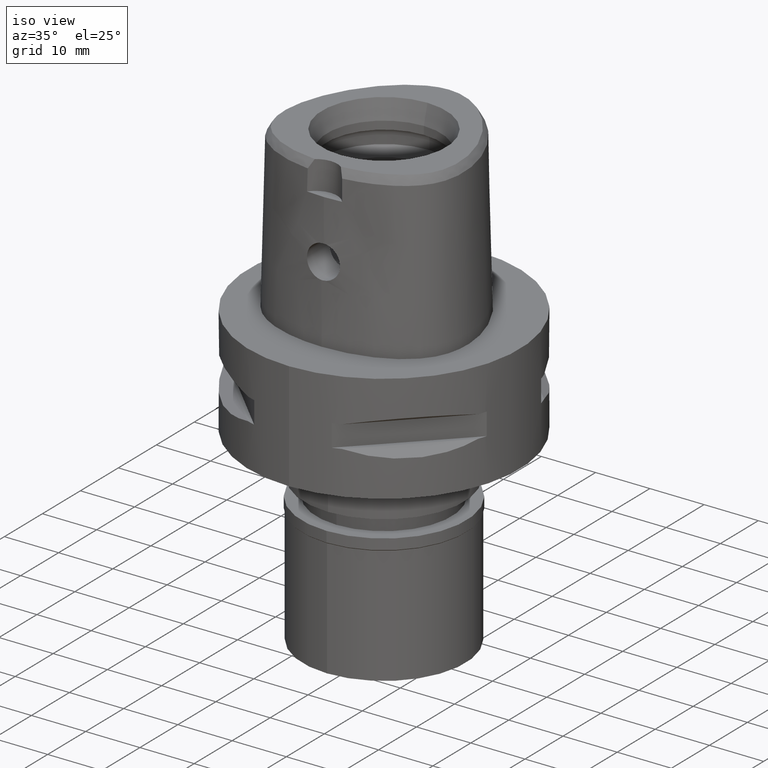
[diagram: clean part render]
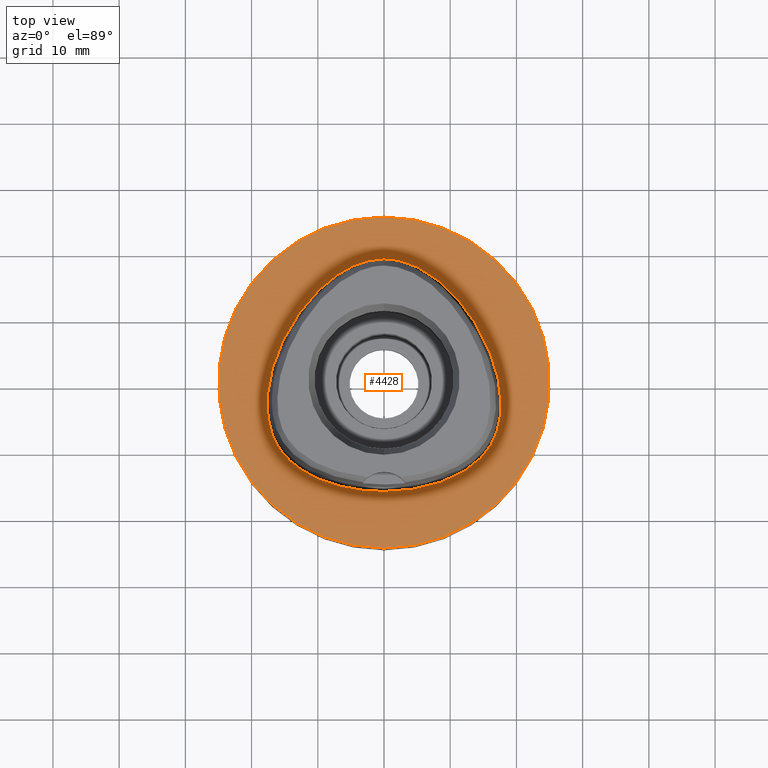
[diagram: tour spotlight — one face highlighted and labeled with its STEP entity id]
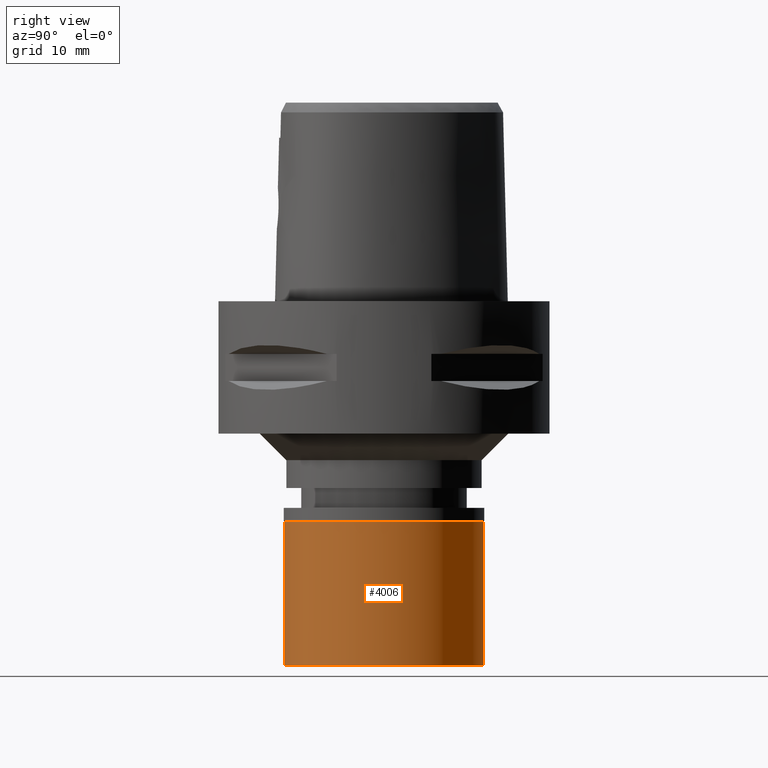
[diagram: tour spotlight — one face highlighted and labeled with its STEP entity id]
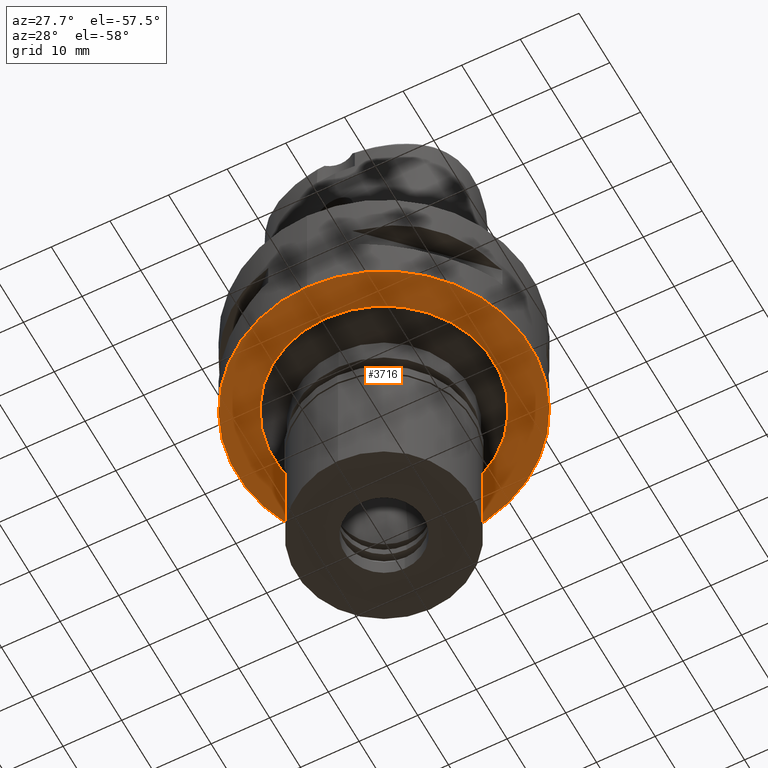
[diagram: tour spotlight — one face highlighted and labeled with its STEP entity id]
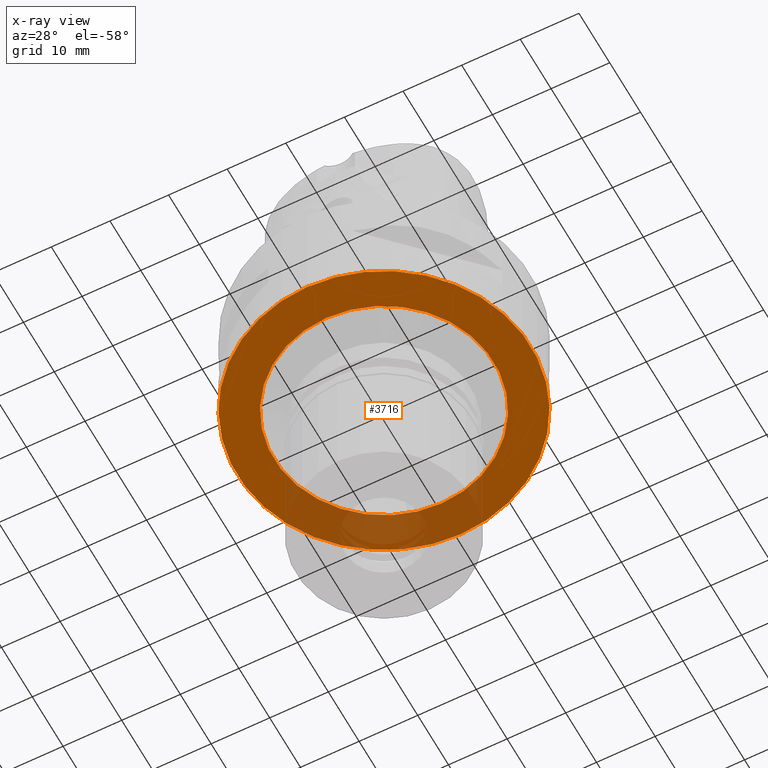
[diagram: x-ray of the same camera — body ghosted, this tour face saturated]
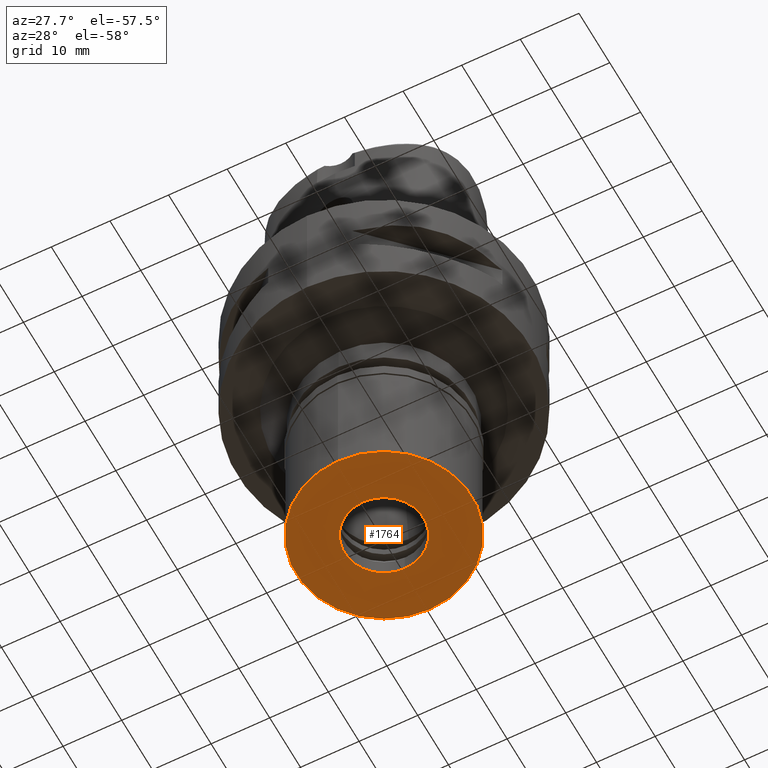
[diagram: tour spotlight — one face highlighted and labeled with its STEP entity id]
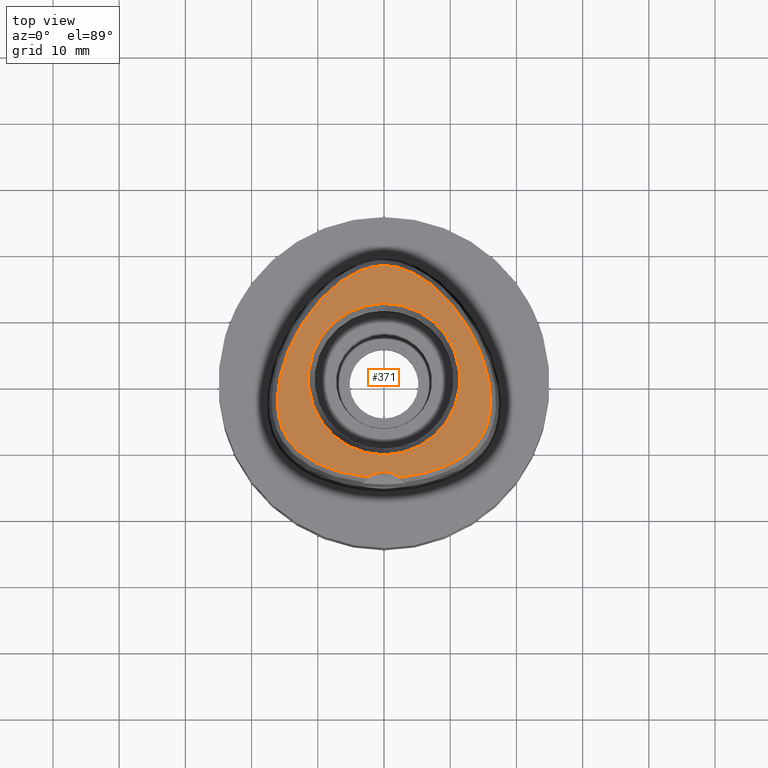
[diagram: tour spotlight — one face highlighted and labeled with its STEP entity id]
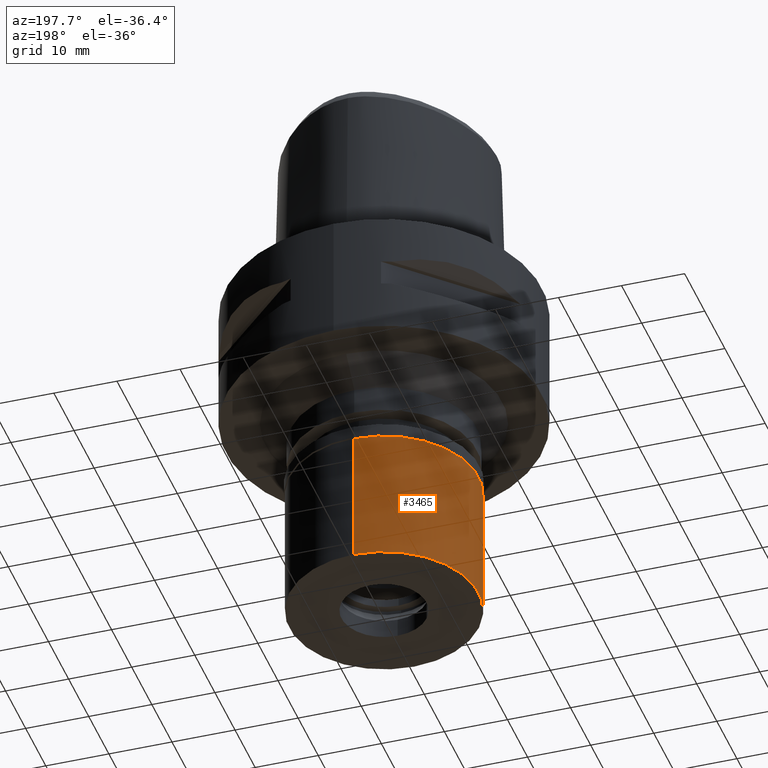
[diagram: tour spotlight — one face highlighted and labeled with its STEP entity id]
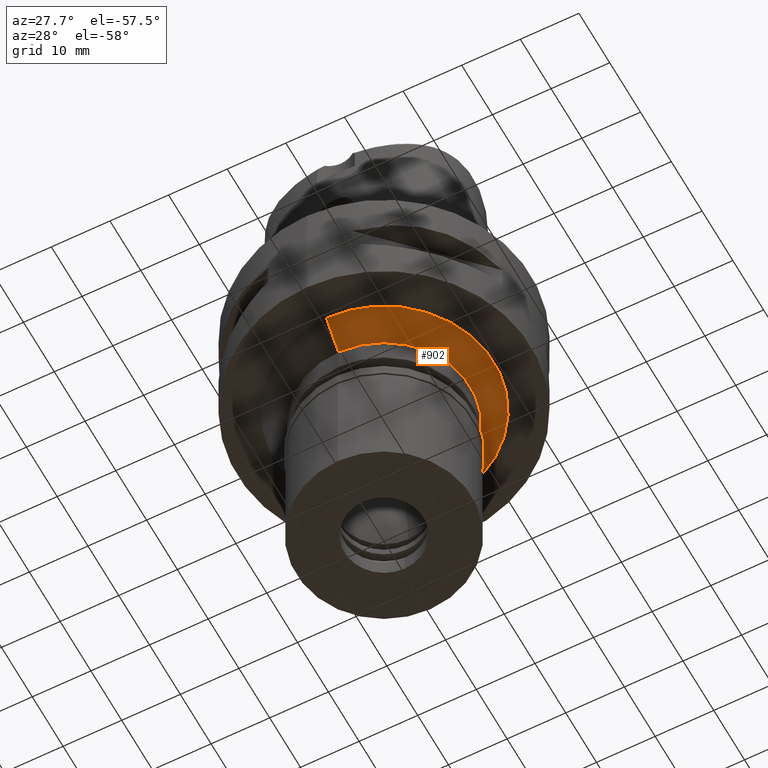
[diagram: tour spotlight — one face highlighted and labeled with its STEP entity id]
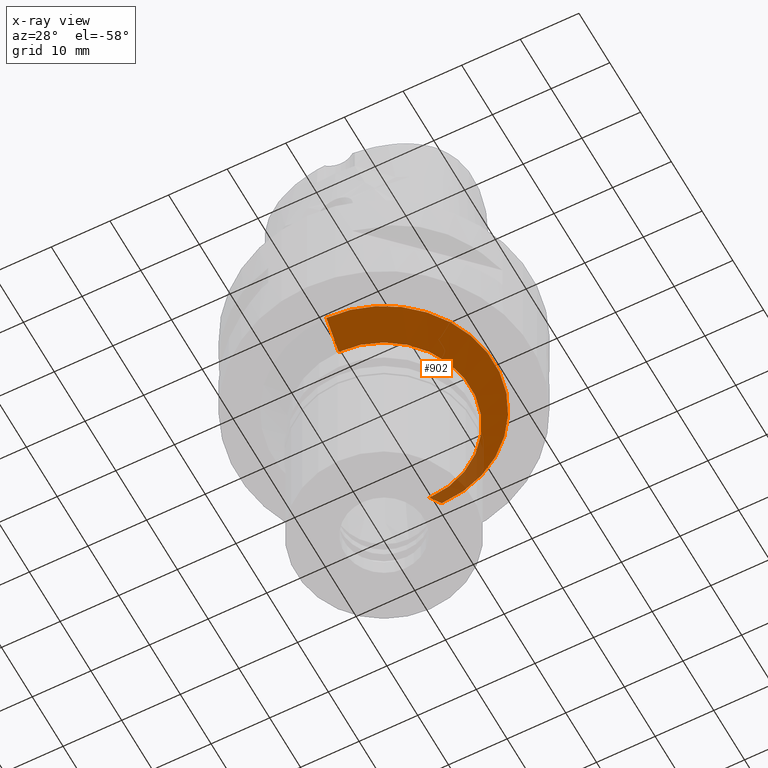
[diagram: x-ray of the same camera — body ghosted, this tour face saturated]
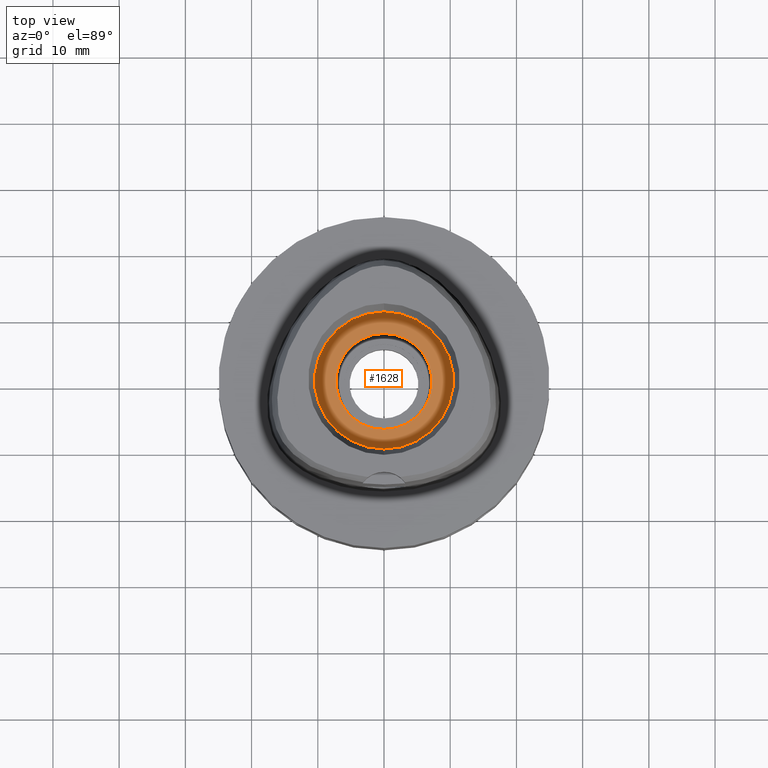
[diagram: tour spotlight — one face highlighted and labeled with its STEP entity id]
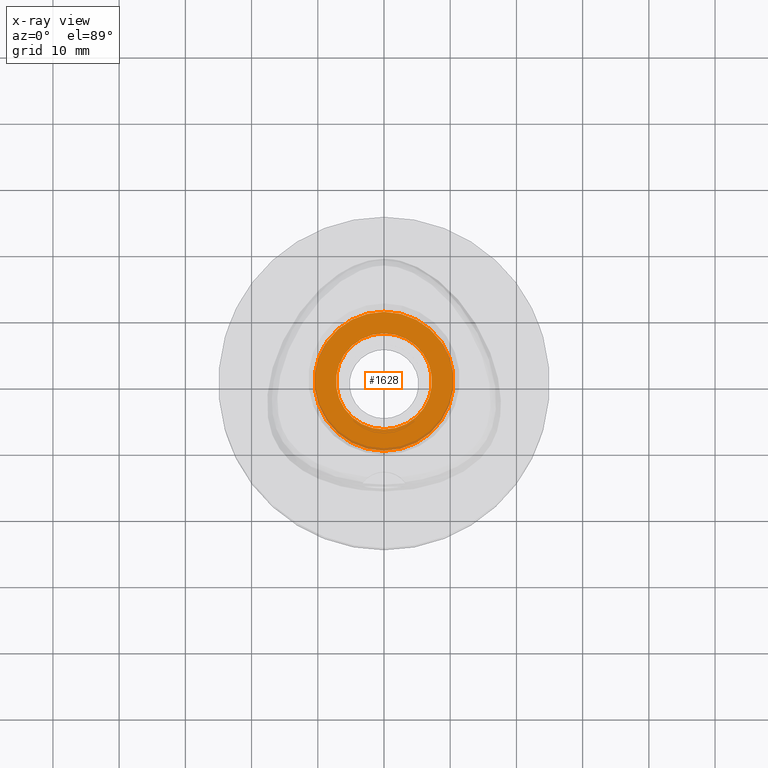
[diagram: x-ray of the same camera — body ghosted, this tour face saturated]
A machine part: a face-by-face anatomy tour. The part has 98 B-rep faces; the first image is the clean iso view, then the 8 largest visible faces are spotlighted one at a time (largest first), each with its STEP entity span.

Face 1 — top view, entity #4428. In plain terms, the highlighted planar face has unit normal (0, 0, -1).
Definition (entity closure, byte-faithful):
#113 = CARTESIAN_POINT ( 'NONE',  ( -4.728927206327147914, 17.73480468646186381, 4.552303366624037284E-08 ) ) ;
#145 = CARTESIAN_POINT ( 'NONE',  ( 0.0000000000000000000, 1.252201352127999809E-14, 0.0000000000000000000 ) ) ;
#172 = CARTESIAN_POINT ( 'NONE',  ( 1.151443814120000046E-10, 18.69499999997000117, 2.165675046701999936E-13 ) ) ;
#249 = CARTESIAN_POINT ( 'NONE',  ( -16.20602471864702920, -9.356552733804035071, 4.552303366624037284E-08 ) ) ;
#257 = EDGE_CURVE ( 'NONE', #546, #3230, #1526, .T. ) ;
#277 = CARTESIAN_POINT ( 'NONE',  ( -2.732767252417000146E-13, -16.45500000000000185, 2.177517425631000294E-13 ) ) ;
#300 = EDGE_CURVE ( 'NONE', #3230, #546, #1283, .T. ) ;
#393 = FACE_OUTER_BOUND ( 'NONE', #2321, .T. ) ;
#416 = CARTESIAN_POINT ( 'NONE',  ( 1.151443814120000046E-10, 18.69499999997000117, 2.165675046701999936E-13 ) ) ;
#532 = CARTESIAN_POINT ( 'NONE',  ( 2.040572359458030949, 18.55015625856890793, -3.479442883445003909E-07 ) ) ;
#546 = VERTEX_POINT ( 'NONE', #416 ) ;
#558 = CARTESIAN_POINT ( 'NONE',  ( 17.16495052617579020, -7.165908205608626069, -3.479442883445003909E-07 ) ) ;
#583 = CARTESIAN_POINT ( 'NONE',  ( 17.56373943798408632, -5.455996094987367151, -3.479442883445003909E-07 ) ) ;
#611 = CARTESIAN_POINT ( 'NONE',  ( 8.946741559168900793, -15.03902344572597016, -3.479442883445003909E-07 ) ) ;
#635 = CARTESIAN_POINT ( 'NONE',  ( -16.51672824672003514, 3.703437499611570427, 4.552303366624037284E-08 ) ) ;
#901 = CARTESIAN_POINT ( 'NONE',  ( 0.6801907864972926987, 18.69500000869551570, -3.479442883445003909E-07 ) ) ;
#975 = CARTESIAN_POINT ( 'NONE',  ( -2.732767252417000146E-13, -16.45500000000000185, 2.177517425631000294E-13 ) ) ;
#1126 = PLANE ( 'NONE',  #2805 ) ;
#1129 = DIRECTION ( 'NONE',  ( 0.0000000000000000000, -1.000000000000000000, 0.0000000000000000000 ) ) ;
#1154 = CARTESIAN_POINT ( 'NONE',  ( 0.0000000000000000000, 1.224646799146999965E-14, 0.0000000000000000000 ) ) ;
#1156 = DIRECTION ( 'NONE',  ( 0.0000000000000000000, 1.000000000000000000, 0.0000000000000000000 ) ) ;
#1259 = CARTESIAN_POINT ( 'NONE',  ( 17.49754713168341169, -0.2285937484726903723, -3.479442883445003909E-07 ) ) ;
#1283 = B_SPLINE_CURVE_WITH_KNOTS ( 'NONE', 3,
 ( #277, #3945, #2053, #611, #2731, #2079, #2843, #1748, #2409, #1286, #558, #583, #3232, #1259, #4327, #4236, #3178, #1304, #2027, #532, #901, #172 ),
 .UNSPECIFIED., .F., .F.,
 ( 4, 1, 1, 1, 1, 1, 1, 1, 1, 1, 1, 1, 1, 1, 1, 1, 1, 1, 1, 4 ),
 ( 0.0000000000000000000, 0.08333333333324000058, 0.1666666666665000129, 0.2083333333331000015, 0.2499999999996999900, 0.2916666666664000096, 0.3124999999996999622, 0.3333333333328999948, 0.3541666666663000340, 0.3749999999995999866, 0.4166666666663000340, 0.4583333333328000192, 0.4999999999994999555, 0.5833333333326999881, 0.6666666666660000518, 0.7499999999991999733, 0.8333333333324000058, 0.9166666666657000695, 0.9583333333322999747, 1.000000000000000000 ),
 .UNSPECIFIED. ) ;
#1286 = CARTESIAN_POINT ( 'NONE',  ( 16.66912842936392991, -8.445800784790817417, -3.479442883445003909E-07 ) ) ;
#1304 = CARTESIAN_POINT ( 'NONE',  ( 7.967839669642795108, 15.83070313190109246, -3.479442883445003909E-07 ) ) ;
#1332 = CARTESIAN_POINT ( 'NONE',  ( -17.71143735446788980, -3.269218750007805596, 4.552303366624037284E-08 ) ) ;
#1526 = B_SPLINE_CURVE_WITH_KNOTS ( 'NONE', 3,
 ( #4173, #1942, #3427, #113, #1586, #1961, #1643, #635, #3546, #1332, #4303, #4639, #3206, #249, #3518, #2812, #1691, #4689, #1719, #3912, #4277, #975 ),
 .UNSPECIFIED., .F., .F.,
 ( 4, 1, 1, 1, 1, 1, 1, 1, 1, 1, 1, 1, 1, 1, 1, 1, 1, 1, 1, 4 ),
 ( 0.0000000000000000000, 0.04166666666892999971, 0.08333333333549000632, 0.1666666666687000031, 0.2500000000018000046, 0.3333333333349000061, 0.4166666666681000386, 0.5000000000012000401, 0.5416666666678000563, 0.5833333333343000415, 0.6250000000008999468, 0.6458333333342000104, 0.6666666666675000741, 0.6875000000008000267, 0.7083333333340000593, 0.7500000000005999645, 0.7916666666673000119, 0.8333333333337999971, 0.9166666666670000296, 1.000000000000000000 ),
 .UNSPECIFIED. ) ;
#1586 = CARTESIAN_POINT ( 'NONE',  ( -7.967839663516353532, 15.83070312409091329, 4.552303366624037284E-08 ) ) ;
#1601 = CARTESIAN_POINT ( 'NONE',  ( 0.0000000000000000000, 1.252201352127999809E-14, 0.0000000000000000000 ) ) ;
#1643 = CARTESIAN_POINT ( 'NONE',  ( -14.38008119590371869, 8.302343749427668840, 4.552303366624037284E-08 ) ) ;
#1691 = CARTESIAN_POINT ( 'NONE',  ( -13.50690093409537695, -12.48264648348115102, 4.552303366624037284E-08 ) ) ;
#1719 = CARTESIAN_POINT ( 'NONE',  ( -8.946741555794719858, -15.03902343643010830, 4.552303366624037284E-08 ) ) ;
#1748 = CARTESIAN_POINT ( 'NONE',  ( 15.64884224960954384, -10.21298828637607237, -3.479442883445003909E-07 ) ) ;
#1942 = CARTESIAN_POINT ( 'NONE',  ( -0.6801907857698357152, 18.69499999886590302, 4.552303366624037284E-08 ) ) ;
#1961 = CARTESIAN_POINT ( 'NONE',  ( -11.46563507935899651, 12.45218749925876089, 4.552303366624037284E-08 ) ) ;
#2027 = CARTESIAN_POINT ( 'NONE',  ( 4.728927210554268790, 17.73480469544902149, -3.479442883445003909E-07 ) ) ;
#2053 = CARTESIAN_POINT ( 'NONE',  ( 5.051093169114821535, -16.15562500860708539, -3.479442883445003909E-07 ) ) ;
#2079 = CARTESIAN_POINT ( 'NONE',  ( 13.50690094019456744, -12.48264649124733161, -3.479442883445003909E-07 ) ) ;
#2087 = ORIENTED_EDGE ( 'NONE', *, *, #300, .F. ) ;
#2321 = EDGE_LOOP ( 'NONE', ( #2496, #3713 ) ) ;
#2342 = CARTESIAN_POINT ( 'NONE',  ( 0.0000000000000000000, 25.00000000000000000, 0.0000000000000000000 ) ) ;
#2409 = CARTESIAN_POINT ( 'NONE',  ( 16.20602472718874054, -9.356552738732355934, -3.479442883445003909E-07 ) ) ;
#2435 = CIRCLE ( 'NONE', #2678, 25.00000000000000000 ) ;
#2496 = ORIENTED_EDGE ( 'NONE', *, *, #3361, .F. ) ;
#2516 = DIRECTION ( 'NONE',  ( 0.0000000000000000000, -1.000000000000000000, 0.0000000000000000000 ) ) ;
#2587 = DIRECTION ( 'NONE',  ( 0.0000000000000000000, 0.0000000000000000000, -1.000000000000000000 ) ) ;
#2596 = AXIS2_PLACEMENT_3D ( 'NONE', #145, #4448, #1129 ) ;
#2678 = AXIS2_PLACEMENT_3D ( 'NONE', #1601, #4096, #1156 ) ;
#2731 = CARTESIAN_POINT ( 'NONE',  ( 11.68694517015587309, -13.70394532007966504, -3.479442883445003909E-07 ) ) ;
#2805 = AXIS2_PLACEMENT_3D ( 'NONE', #1154, #2587, #2516 ) ;
#2812 = CARTESIAN_POINT ( 'NONE',  ( -14.78833380316578605, -11.28232910077399431, 4.552303366624037284E-08 ) ) ;
#2843 = CARTESIAN_POINT ( 'NONE',  ( 14.78833381033293648, -11.28232910757304630, -3.479442883445003909E-07 ) ) ;
#2879 = EDGE_LOOP ( 'NONE', ( #3095, #2087 ) ) ;
#3071 = CARTESIAN_POINT ( 'NONE',  ( 0.0000000000000000000, -25.00000000000000000, 0.0000000000000000000 ) ) ;
#3095 = ORIENTED_EDGE ( 'NONE', *, *, #257, .F. ) ;
#3178 = CARTESIAN_POINT ( 'NONE',  ( 11.46563508691895805, 12.45218750564272447, -3.479442883445003909E-07 ) ) ;
#3206 = CARTESIAN_POINT ( 'NONE',  ( -16.66912842034997411, -8.445800780786887785, 4.552303366624037284E-08 ) ) ;
#3230 = VERTEX_POINT ( 'NONE', #4424 ) ;
#3232 = CARTESIAN_POINT ( 'NONE',  ( 17.71143736434618887, -3.269218749943413993, -3.479442883445003909E-07 ) ) ;
#3361 = EDGE_CURVE ( 'NONE', #3406, #3828, #2435, .T. ) ;
#3406 = VERTEX_POINT ( 'NONE', #2342 ) ;
#3427 = CARTESIAN_POINT ( 'NONE',  ( -2.040572357432135053, 18.55015624887900572, 4.552303366624037284E-08 ) ) ;
#3506 = EDGE_CURVE ( 'NONE', #3828, #3406, #3931, .T. ) ;
#3518 = CARTESIAN_POINT ( 'NONE',  ( -15.64884224163582616, -10.21298828058140629, 4.552303366624037284E-08 ) ) ;
#3546 = CARTESIAN_POINT ( 'NONE',  ( -17.49754712195156969, -0.2285937501998314691, 4.552303366624037284E-08 ) ) ;
#3713 = ORIENTED_EDGE ( 'NONE', *, *, #3506, .F. ) ;
#3828 = VERTEX_POINT ( 'NONE', #3071 ) ;
#3912 = CARTESIAN_POINT ( 'NONE',  ( -5.051093167371203840, -16.15562499886673820, 4.552303366624037284E-08 ) ) ;
#3931 = CIRCLE ( 'NONE', #2596, 25.00000000000000000 ) ;
#3945 = CARTESIAN_POINT ( 'NONE',  ( 1.683697723039888849, -16.45500000869401092, -3.479442883445003909E-07 ) ) ;
#4096 = DIRECTION ( 'NONE',  ( 0.0000000000000000000, 0.0000000000000000000, -1.000000000000000000 ) ) ;
#4173 = CARTESIAN_POINT ( 'NONE',  ( 1.151443814120000046E-10, 18.69499999997000117, 2.165675046701999936E-13 ) ) ;
#4236 = CARTESIAN_POINT ( 'NONE',  ( 14.38008120447227967, 8.302343754369969631, -3.479442883445003909E-07 ) ) ;
#4277 = CARTESIAN_POINT ( 'NONE',  ( -1.683697722461389601, -16.45499999886587972, 4.552303366624037284E-08 ) ) ;
#4303 = CARTESIAN_POINT ( 'NONE',  ( -17.56373942820204093, -5.455996093588253437, 4.552303366624037284E-08 ) ) ;
#4327 = CARTESIAN_POINT ( 'NONE',  ( 16.51672825603316852, 3.703437502969323170, -3.479442883445003909E-07 ) ) ;
#4424 = CARTESIAN_POINT ( 'NONE',  ( -2.732767252417000146E-13, -16.45500000000000185, 2.177517425631000294E-13 ) ) ;
#4428 = ADVANCED_FACE ( 'NONE', ( #393, #4443 ), #1126, .F. ) ;
#4443 = FACE_BOUND ( 'NONE', #2879, .T. ) ;
#4448 = DIRECTION ( 'NONE',  ( 0.0000000000000000000, 0.0000000000000000000, -1.000000000000000000 ) ) ;
#4639 = CARTESIAN_POINT ( 'NONE',  ( -17.16495051670693783, -7.165908202799537108, 4.552303366624037284E-08 ) ) ;
#4689 = CARTESIAN_POINT ( 'NONE',  ( -11.68694516526699623, -13.70394531151501027, 4.552303366624037284E-08 ) ) ;

Face 2 — right view, entity #4006. In plain terms, the highlighted cylindrical surface (partial cylindrical patch) has radius 15 mm, axis along (0, 0, -1).
Definition (entity closure, byte-faithful):
#150 = CARTESIAN_POINT ( 'NONE',  ( 0.0000000000000000000, 15.00000000000000000, -23.80000000000000071 ) ) ;
#407 = AXIS2_PLACEMENT_3D ( 'NONE', #2789, #2740, #542 ) ;
#467 = LINE ( 'NONE', #4195, #811 ) ;
#486 = CARTESIAN_POINT ( 'NONE',  ( 0.0000000000000000000, 0.0000000000000000000, -23.80000000000000071 ) ) ;
#542 = DIRECTION ( 'NONE',  ( 0.0000000000000000000, 1.000000000000000000, 0.0000000000000000000 ) ) ;
#759 = EDGE_LOOP ( 'NONE', ( #1765, #1475, #840, #3351 ) ) ;
#811 = VECTOR ( 'NONE', #1717, 1000.000000000000000 ) ;
#840 = ORIENTED_EDGE ( 'NONE', *, *, #3434, .T. ) ;
#843 = EDGE_CURVE ( 'NONE', #4038, #1442, #3682, .T. ) ;
#931 = DIRECTION ( 'NONE',  ( 0.0000000000000000000, -1.000000000000000000, 0.0000000000000000000 ) ) ;
#1268 = VECTOR ( 'NONE', #1489, 1000.000000000000000 ) ;
#1334 = CARTESIAN_POINT ( 'NONE',  ( 0.0000000000000000000, 15.00000000000000000, -2.100000000000000089 ) ) ;
#1413 = EDGE_CURVE ( 'NONE', #4275, #2190, #467, .T. ) ;
#1442 = VERTEX_POINT ( 'NONE', #1669 ) ;
#1475 = ORIENTED_EDGE ( 'NONE', *, *, #843, .T. ) ;
#1489 = DIRECTION ( 'NONE',  ( 0.0000000000000000000, 0.0000000000000000000, -1.000000000000000000 ) ) ;
#1515 = DIRECTION ( 'NONE',  ( 0.0000000000000000000, -1.000000000000000000, 0.0000000000000000000 ) ) ;
#1669 = CARTESIAN_POINT ( 'NONE',  ( 0.0000000000000000000, -15.00000000000000000, -23.80000000000000071 ) ) ;
#1717 = DIRECTION ( 'NONE',  ( 0.0000000000000000000, 0.0000000000000000000, -1.000000000000000000 ) ) ;
#1765 = ORIENTED_EDGE ( 'NONE', *, *, #3969, .T. ) ;
#1817 = CARTESIAN_POINT ( 'NONE',  ( 0.0000000000000000000, -15.00000000000000000, -2.100000000000000089 ) ) ;
#1903 = CIRCLE ( 'NONE', #2928, 15.00000000000000000 ) ;
#1959 = DIRECTION ( 'NONE',  ( 0.0000000000000000000, 0.0000000000000000000, 1.000000000000000000 ) ) ;
#2190 = VERTEX_POINT ( 'NONE', #150 ) ;
#2376 = CARTESIAN_POINT ( 'NONE',  ( 0.0000000000000000000, 0.0000000000000000000, 0.0000000000000000000 ) ) ;
#2740 = DIRECTION ( 'NONE',  ( 0.0000000000000000000, 0.0000000000000000000, -1.000000000000000000 ) ) ;
#2789 = CARTESIAN_POINT ( 'NONE',  ( 0.0000000000000000000, 0.0000000000000000000, -2.100000000000000089 ) ) ;
#2928 = AXIS2_PLACEMENT_3D ( 'NONE', #486, #1959, #1515 ) ;
#2950 = CARTESIAN_POINT ( 'NONE',  ( 0.0000000000000000000, -15.00000000000000000, -2.100000000000000089 ) ) ;
#3041 = CIRCLE ( 'NONE', #407, 15.00000000000000000 ) ;
#3215 = DIRECTION ( 'NONE',  ( 0.0000000000000000000, 0.0000000000000000000, -1.000000000000000000 ) ) ;
#3351 = ORIENTED_EDGE ( 'NONE', *, *, #1413, .F. ) ;
#3434 = EDGE_CURVE ( 'NONE', #1442, #2190, #1903, .T. ) ;
#3556 = FACE_OUTER_BOUND ( 'NONE', #759, .T. ) ;
#3682 = LINE ( 'NONE', #2950, #1268 ) ;
#3873 = CYLINDRICAL_SURFACE ( 'NONE', #4133, 15.00000000000000000 ) ;
#3969 = EDGE_CURVE ( 'NONE', #4275, #4038, #3041, .T. ) ;
#4006 = ADVANCED_FACE ( 'NONE', ( #3556 ), #3873, .T. ) ;
#4038 = VERTEX_POINT ( 'NONE', #1817 ) ;
#4133 = AXIS2_PLACEMENT_3D ( 'NONE', #2376, #3215, #931 ) ;
#4195 = CARTESIAN_POINT ( 'NONE',  ( 0.0000000000000000000, 15.00000000000000000, -2.100000000000000089 ) ) ;
#4275 = VERTEX_POINT ( 'NONE', #1334 ) ;

Face 3 — auxiliary view, entity #3716. An x-ray twin of the same camera follows (body ghosted, this face saturated) — the face is partly hidden behind the body. In plain terms, the highlighted planar face has unit normal (0, 0, -1).
Definition (entity closure, byte-faithful):
#225 = VERTEX_POINT ( 'NONE', #2671 ) ;
#368 = DIRECTION ( 'NONE',  ( 0.0000000000000000000, 0.0000000000000000000, -1.000000000000000000 ) ) ;
#379 = EDGE_LOOP ( 'NONE', ( #2994, #4387 ) ) ;
#398 = EDGE_LOOP ( 'NONE', ( #3876, #2863 ) ) ;
#412 = CARTESIAN_POINT ( 'NONE',  ( 0.0000000000000000000, 0.0000000000000000000, -20.00000000000000000 ) ) ;
#413 = CIRCLE ( 'NONE', #4505, 25.00000000000000000 ) ;
#668 = AXIS2_PLACEMENT_3D ( 'NONE', #3122, #4604, #1277 ) ;
#829 = CARTESIAN_POINT ( 'NONE',  ( 0.0000000000000000000, 1.252201352127999809E-14, -20.00000000000000000 ) ) ;
#1153 = CARTESIAN_POINT ( 'NONE',  ( 0.0000000000000000000, -18.75000000000000000, -20.00000000000000000 ) ) ;
#1219 = DIRECTION ( 'NONE',  ( 0.0000000000000000000, 0.0000000000000000000, 1.000000000000000000 ) ) ;
#1277 = DIRECTION ( 'NONE',  ( 0.0000000000000000000, -1.000000000000000000, 0.0000000000000000000 ) ) ;
#1312 = EDGE_CURVE ( 'NONE', #225, #2145, #4779, .T. ) ;
#1419 = VERTEX_POINT ( 'NONE', #1940 ) ;
#1656 = VERTEX_POINT ( 'NONE', #1153 ) ;
#1940 = CARTESIAN_POINT ( 'NONE',  ( 0.0000000000000000000, 18.75000000000000000, -20.00000000000000000 ) ) ;
#2145 = VERTEX_POINT ( 'NONE', #4193 ) ;
#2218 = CIRCLE ( 'NONE', #3312, 18.75000000000000000 ) ;
#2226 = FACE_OUTER_BOUND ( 'NONE', #379, .T. ) ;
#2245 = FACE_BOUND ( 'NONE', #398, .T. ) ;
#2540 = EDGE_CURVE ( 'NONE', #1656, #1419, #2837, .T. ) ;
#2554 = PLANE ( 'NONE',  #4672 ) ;
#2580 = DIRECTION ( 'NONE',  ( 0.0000000000000000000, -1.000000000000000000, 0.0000000000000000000 ) ) ;
#2671 = CARTESIAN_POINT ( 'NONE',  ( 0.0000000000000000000, -25.00000000000000000, -20.00000000000000000 ) ) ;
#2837 = CIRCLE ( 'NONE', #3701, 18.75000000000000000 ) ;
#2855 = DIRECTION ( 'NONE',  ( 0.0000000000000000000, -1.000000000000000000, 0.0000000000000000000 ) ) ;
#2863 = ORIENTED_EDGE ( 'NONE', *, *, #2540, .F. ) ;
#2994 = ORIENTED_EDGE ( 'NONE', *, *, #4571, .F. ) ;
#3122 = CARTESIAN_POINT ( 'NONE',  ( 0.0000000000000000000, 1.252201352127999809E-14, -20.00000000000000000 ) ) ;
#3312 = AXIS2_PLACEMENT_3D ( 'NONE', #4116, #3330, #3355 ) ;
#3330 = DIRECTION ( 'NONE',  ( 0.0000000000000000000, 0.0000000000000000000, -1.000000000000000000 ) ) ;
#3355 = DIRECTION ( 'NONE',  ( 0.0000000000000000000, 1.000000000000000000, 0.0000000000000000000 ) ) ;
#3416 = EDGE_CURVE ( 'NONE', #1419, #1656, #2218, .T. ) ;
#3508 = CARTESIAN_POINT ( 'NONE',  ( 0.0000000000000000000, 0.0000000000000000000, -20.00000000000000000 ) ) ;
#3585 = DIRECTION ( 'NONE',  ( 0.0000000000000000000, 0.0000000000000000000, -1.000000000000000000 ) ) ;
#3701 = AXIS2_PLACEMENT_3D ( 'NONE', #3508, #3585, #2855 ) ;
#3716 = ADVANCED_FACE ( 'NONE', ( #2226, #2245 ), #2554, .T. ) ;
#3876 = ORIENTED_EDGE ( 'NONE', *, *, #3416, .F. ) ;
#4116 = CARTESIAN_POINT ( 'NONE',  ( 0.0000000000000000000, 0.0000000000000000000, -20.00000000000000000 ) ) ;
#4193 = CARTESIAN_POINT ( 'NONE',  ( 0.0000000000000000000, 25.00000000000000000, -20.00000000000000000 ) ) ;
#4387 = ORIENTED_EDGE ( 'NONE', *, *, #1312, .F. ) ;
#4505 = AXIS2_PLACEMENT_3D ( 'NONE', #829, #1219, #4538 ) ;
#4538 = DIRECTION ( 'NONE',  ( 0.0000000000000000000, 1.000000000000000000, 0.0000000000000000000 ) ) ;
#4571 = EDGE_CURVE ( 'NONE', #2145, #225, #413, .T. ) ;
#4604 = DIRECTION ( 'NONE',  ( 0.0000000000000000000, 0.0000000000000000000, 1.000000000000000000 ) ) ;
#4672 = AXIS2_PLACEMENT_3D ( 'NONE', #412, #368, #2580 ) ;
#4779 = CIRCLE ( 'NONE', #668, 25.00000000000000000 ) ;

Face 4 — auxiliary view, entity #1764. In plain terms, the highlighted planar face has unit normal (0, 0, -1).
Definition (entity closure, byte-faithful):
#150 = CARTESIAN_POINT ( 'NONE',  ( 0.0000000000000000000, 15.00000000000000000, -23.80000000000000071 ) ) ;
#297 = CIRCLE ( 'NONE', #1670, 6.750000000000000000 ) ;
#486 = CARTESIAN_POINT ( 'NONE',  ( 0.0000000000000000000, 0.0000000000000000000, -23.80000000000000071 ) ) ;
#506 = CIRCLE ( 'NONE', #2044, 15.00000000000000000 ) ;
#529 = DIRECTION ( 'NONE',  ( 0.0000000000000000000, 1.000000000000000000, 0.0000000000000000000 ) ) ;
#582 = AXIS2_PLACEMENT_3D ( 'NONE', #2606, #4106, #770 ) ;
#637 = EDGE_CURVE ( 'NONE', #1112, #1707, #3687, .T. ) ;
#722 = EDGE_LOOP ( 'NONE', ( #1401, #1801 ) ) ;
#770 = DIRECTION ( 'NONE',  ( 0.0000000000000000000, -1.000000000000000000, 0.0000000000000000000 ) ) ;
#906 = DIRECTION ( 'NONE',  ( 0.0000000000000000000, 0.0000000000000000000, -1.000000000000000000 ) ) ;
#952 = CARTESIAN_POINT ( 'NONE',  ( 0.0000000000000000000, 0.0000000000000000000, -23.80000000000000071 ) ) ;
#973 = ORIENTED_EDGE ( 'NONE', *, *, #637, .F. ) ;
#981 = DIRECTION ( 'NONE',  ( 0.0000000000000000000, -1.000000000000000000, 0.0000000000000000000 ) ) ;
#1112 = VERTEX_POINT ( 'NONE', #1242 ) ;
#1113 = ORIENTED_EDGE ( 'NONE', *, *, #3400, .F. ) ;
#1145 = PLANE ( 'NONE',  #582 ) ;
#1237 = CARTESIAN_POINT ( 'NONE',  ( 0.0000000000000000000, 0.0000000000000000000, -23.80000000000000071 ) ) ;
#1242 = CARTESIAN_POINT ( 'NONE',  ( 0.0000000000000000000, -6.750000000000000000, -23.80000000000000071 ) ) ;
#1257 = DIRECTION ( 'NONE',  ( 0.0000000000000000000, 0.0000000000000000000, -1.000000000000000000 ) ) ;
#1352 = AXIS2_PLACEMENT_3D ( 'NONE', #2414, #906, #981 ) ;
#1401 = ORIENTED_EDGE ( 'NONE', *, *, #2230, .F. ) ;
#1442 = VERTEX_POINT ( 'NONE', #1669 ) ;
#1507 = FACE_OUTER_BOUND ( 'NONE', #722, .T. ) ;
#1515 = DIRECTION ( 'NONE',  ( 0.0000000000000000000, -1.000000000000000000, 0.0000000000000000000 ) ) ;
#1669 = CARTESIAN_POINT ( 'NONE',  ( 0.0000000000000000000, -15.00000000000000000, -23.80000000000000071 ) ) ;
#1670 = AXIS2_PLACEMENT_3D ( 'NONE', #1237, #1257, #529 ) ;
#1707 = VERTEX_POINT ( 'NONE', #1840 ) ;
#1764 = ADVANCED_FACE ( 'NONE', ( #1507, #4464 ), #1145, .T. ) ;
#1801 = ORIENTED_EDGE ( 'NONE', *, *, #3434, .F. ) ;
#1840 = CARTESIAN_POINT ( 'NONE',  ( 0.0000000000000000000, 6.750000000000000000, -23.80000000000000071 ) ) ;
#1903 = CIRCLE ( 'NONE', #2928, 15.00000000000000000 ) ;
#1959 = DIRECTION ( 'NONE',  ( 0.0000000000000000000, 0.0000000000000000000, 1.000000000000000000 ) ) ;
#2030 = DIRECTION ( 'NONE',  ( 0.0000000000000000000, 1.000000000000000000, 0.0000000000000000000 ) ) ;
#2044 = AXIS2_PLACEMENT_3D ( 'NONE', #952, #3570, #2030 ) ;
#2190 = VERTEX_POINT ( 'NONE', #150 ) ;
#2230 = EDGE_CURVE ( 'NONE', #2190, #1442, #506, .T. ) ;
#2414 = CARTESIAN_POINT ( 'NONE',  ( 0.0000000000000000000, 0.0000000000000000000, -23.80000000000000071 ) ) ;
#2606 = CARTESIAN_POINT ( 'NONE',  ( 0.0000000000000000000, 0.0000000000000000000, -23.80000000000000071 ) ) ;
#2928 = AXIS2_PLACEMENT_3D ( 'NONE', #486, #1959, #1515 ) ;
#3005 = EDGE_LOOP ( 'NONE', ( #1113, #973 ) ) ;
#3400 = EDGE_CURVE ( 'NONE', #1707, #1112, #297, .T. ) ;
#3434 = EDGE_CURVE ( 'NONE', #1442, #2190, #1903, .T. ) ;
#3570 = DIRECTION ( 'NONE',  ( 0.0000000000000000000, 0.0000000000000000000, 1.000000000000000000 ) ) ;
#3687 = CIRCLE ( 'NONE', #1352, 6.750000000000000000 ) ;
#4106 = DIRECTION ( 'NONE',  ( 0.0000000000000000000, 0.0000000000000000000, -1.000000000000000000 ) ) ;
#4464 = FACE_BOUND ( 'NONE', #3005, .T. ) ;

Face 5 — top view, entity #371. In plain terms, the highlighted planar face has unit normal (0, 0, 1).
Definition (entity closure, byte-faithful):
#7 = CARTESIAN_POINT ( 'NONE',  ( 14.44767169632972958, -9.224476417586023658, 30.00000000000349232 ) ) ;
#26 = CARTESIAN_POINT ( 'NONE',  ( -5.257871200568124515, 15.58649213537407618, 29.99999999999975842 ) ) ;
#32 = CARTESIAN_POINT ( 'NONE',  ( 16.04058509949816980, -1.654113685488451280, 29.99999999999945999 ) ) ;
#42 = EDGE_LOOP ( 'NONE', ( #140, #3363, #1216 ) ) ;
#49 = CARTESIAN_POINT ( 'NONE',  ( -14.76322153899977430, -8.744676018998990941, 29.99999999999892708 ) ) ;
#74 = CARTESIAN_POINT ( 'NONE',  ( -11.11900396222790377, 10.19116357425088104, 30.00000000000079226 ) ) ;
#104 = CIRCLE ( 'NONE', #2642, 4.000000000000000888 ) ;
#121 = CARTESIAN_POINT ( 'NONE',  ( -0.5679008307149057133, 17.14013367087081363, 29.99999999999717204 ) ) ;
#140 = ORIENTED_EDGE ( 'NONE', *, *, #4375, .F. ) ;
#279 = CARTESIAN_POINT ( 'NONE',  ( 3.772905803808125125, 16.33508552418916793, 30.00000000000310152 ) ) ;
#304 = CARTESIAN_POINT ( 'NONE',  ( 0.0000000000000000000, -11.43782217350000074, 30.00000000000000000 ) ) ;
#309 = CARTESIAN_POINT ( 'NONE',  ( 1.774127352510969979, 16.97169788999384110, 29.99999999999935696 ) ) ;
#352 = CARTESIAN_POINT ( 'NONE',  ( 15.87349190487937278, -5.869792298898485861, 29.99999999999554845 ) ) ;
#371 = ADVANCED_FACE ( 'NONE', ( #756, #1098 ), #4350, .T. ) ;
#372 = CARTESIAN_POINT ( 'NONE',  ( 15.99982784346025433, -5.151471542954515037, 29.99999999999611333 ) ) ;
#418 = CARTESIAN_POINT ( 'NONE',  ( 2.406543924163999648, -14.80491841401999942, 30.00000000000000000 ) ) ;
#437 = CARTESIAN_POINT ( 'NONE',  ( -6.047371482395117681, 15.09400374235769604, 30.00000000000084199 ) ) ;
#451 = DIRECTION ( 'NONE',  ( 0.0000000000000000000, -1.000000000000000000, 0.0000000000000000000 ) ) ;
#478 = CARTESIAN_POINT ( 'NONE',  ( -14.08052509618844894, -9.706873108418424323, 29.99999999999043965 ) ) ;
#559 = CARTESIAN_POINT ( 'NONE',  ( -6.301949009456000041E-11, 17.15328888647999861, 30.00000000000000000 ) ) ;
#613 = CARTESIAN_POINT ( 'NONE',  ( 11.92667412982236996, 9.061218325783505279, 29.99999999999601741 ) ) ;
#729 = CARTESIAN_POINT ( 'NONE',  ( -5.437876102061282246, -14.35707869331161923, 29.99999999999947420 ) ) ;
#737 = CARTESIAN_POINT ( 'NONE',  ( -2.406542353497000075, -14.80491723099000012, 30.00000000000000000 ) ) ;
#756 = FACE_OUTER_BOUND ( 'NONE', #42, .T. ) ;
#776 = CARTESIAN_POINT ( 'NONE',  ( 15.90185233182487679, -0.6139199331562382733, 29.99999999999867839 ) ) ;
#820 = CARTESIAN_POINT ( 'NONE',  ( -14.55898035934081314, 4.112421202110871477, 30.00000000000046896 ) ) ;
#833 = B_SPLINE_CURVE_WITH_KNOTS ( 'NONE', 3,
 ( #3228, #4714, #4344, #4417, #729, #2201, #1050, #3255, #1480, #1408, #4024, #3369, #2680, #1855, #1166, #478, #930, #49, #3765, #2243, #4157, #2392, #1551, #4183, #846, #1953, #2987, #2605, #4263, #2268, #4486, #3392, #820, #4463, #2628, #3897, #3077, #74, #2314, #4128, #1189, #3803, #2295, #437, #26, #1531, #3029, #1292, #2653, #1929, #3340, #121, #3436, #2763 ),
 .UNSPECIFIED., .F., .F.,
 ( 4, 1, 1, 1, 1, 1, 1, 1, 1, 1, 1, 1, 1, 1, 1, 1, 1, 1, 1, 1, 1, 1, 1, 1, 1, 1, 1, 1, 1, 1, 1, 1, 1, 1, 1, 1, 1, 1, 1, 1, 1, 1, 1, 1, 1, 1, 1, 1, 1, 1, 1, 4 ),
 ( 0.0000000000000000000, 0.005566907331700066131, 0.02545556918509994659, 0.04534423103860008020, 0.06523289289190004059, 0.08512155474529992105, 0.1050102165987000236, 0.1248988784521999351, 0.1447875403055000065, 0.1646762021588999980, 0.1845648640122999895, 0.2044535258655999499, 0.2243421877191000835, 0.2442308495724999640, 0.2641195114257999244, 0.2840081732792000269, 0.3038968351325999073, 0.3237854969860000098, 0.3436741588394000013, 0.3635628206927999928, 0.3834514825461999843, 0.4033401443995000557, 0.4232288062529999673, 0.4431174681064000698, 0.4630061299597000302, 0.4828947918130999106, 0.5027834536666000442, 0.5226721155199000046, 0.5425607773732999961, 0.5624494392267000986, 0.5823381010799999480, 0.6022267629334999706, 0.6221154247869000731, 0.6420040866403000646, 0.6618927484936000250, 0.6817814103470000164, 0.7016700722005000390, 0.7215587340537999994, 0.7414473959071999909, 0.7613360577605999824, 0.7812247196139999739, 0.8011133814673999654, 0.8210020433207999568, 0.8408907051741000283, 0.8607793670275000197, 0.8806680288810000423, 0.9005566907343299787, 0.9204453525877199782, 0.9403340144411099777, 0.9602226762944999772, 0.9801113381478899766, 1.000000000000000000 ),
 .UNSPECIFIED. ) ;
#846 = CARTESIAN_POINT ( 'NONE',  ( -16.08550869467103794, -4.376322360226262198, 29.99999999999960920 ) ) ;
#922 = CARTESIAN_POINT ( 'NONE',  ( 8.557117433367650960, 13.07415149353094463, 30.00000000000519762 ) ) ;
#930 = CARTESIAN_POINT ( 'NONE',  ( -14.44611813752641005, -9.226676124713041105, 29.99999999999273115 ) ) ;
#1004 = CARTESIAN_POINT ( 'NONE',  ( 0.1912597614439995042, 17.15328888648505767, 30.00000000000150635 ) ) ;
#1050 = CARTESIAN_POINT ( 'NONE',  ( -7.776737509123357484, -13.71663015822366383, 29.99999999999719336 ) ) ;
#1098 = FACE_BOUND ( 'NONE', #4659, .T. ) ;
#1166 = CARTESIAN_POINT ( 'NONE',  ( -13.66338899148582620, -10.18351204678352318, 29.99999999999891998 ) ) ;
#1189 = CARTESIAN_POINT ( 'NONE',  ( -8.556928701964736206, 13.07433695899137405, 29.99999999999247535 ) ) ;
#1204 = EDGE_CURVE ( 'NONE', #4456, #4042, #4383, .T. ) ;
#1205 = AXIS2_PLACEMENT_3D ( 'NONE', #3829, #3098, #4251 ) ;
#1216 = ORIENTED_EDGE ( 'NONE', *, *, #3967, .F. ) ;
#1287 = CARTESIAN_POINT ( 'NONE',  ( 5.258649622040037386, 15.58603480843140687, 30.00000000000148503 ) ) ;
#1292 = CARTESIAN_POINT ( 'NONE',  ( -3.077178008231626904, 16.60571267457867251, 30.00000000000198597 ) ) ;
#1308 = CARTESIAN_POINT ( 'NONE',  ( 13.38374903490346313, 6.636915464740996029, 30.00000000000373745 ) ) ;
#1314 = CARTESIAN_POINT ( 'NONE',  ( 2.406543924163999648, -14.80491841401999942, 30.00000000000000000 ) ) ;
#1408 = CARTESIAN_POINT ( 'NONE',  ( -10.60021164902803825, -12.49731984708606625, 29.99999999999459277 ) ) ;
#1417 = CARTESIAN_POINT ( 'NONE',  ( 12.65514534656850998, -11.12483370674532956, 30.00000000000558487 ) ) ;
#1432 = ORIENTED_EDGE ( 'NONE', *, *, #1204, .F. ) ;
#1466 = CARTESIAN_POINT ( 'NONE',  ( 15.29323375805435248, -7.718923543003244347, 30.00000000000135358 ) ) ;
#1480 = CARTESIAN_POINT ( 'NONE',  ( -9.750168658358987273, -12.92810664733855930, 29.99999999999583977 ) ) ;
#1486 = CARTESIAN_POINT ( 'NONE',  ( 15.68929135224231608, 0.4919393172826021510, 29.99999999999703704 ) ) ;
#1531 = CARTESIAN_POINT ( 'NONE',  ( -4.498660734198929312, 15.99814720006029845, 29.99999999999442934 ) ) ;
#1551 = CARTESIAN_POINT ( 'NONE',  ( -15.87300767660771506, -5.872112237378650512, 29.99999999999490896 ) ) ;
#1672 = CARTESIAN_POINT ( 'NONE',  ( 0.5691917915717495946, 17.14006060249831620, 29.99999999999804245 ) ) ;
#1750 = CARTESIAN_POINT ( 'NONE',  ( 6.863227115066390382, 14.51498137220553808, 29.99999999999822009 ) ) ;
#1799 = CARTESIAN_POINT ( 'NONE',  ( 16.12546998862743308, -3.533461825553951385, 29.99999999999943512 ) ) ;
#1825 = CARTESIAN_POINT ( 'NONE',  ( 11.36765809995742949, -12.04801986073334774, 30.00000000000096279 ) ) ;
#1855 = CARTESIAN_POINT ( 'NONE',  ( -13.18915979441844399, -10.65722997876629385, 30.00000000000235190 ) ) ;
#1862 = CARTESIAN_POINT ( 'NONE',  ( 16.08569500455460499, -4.373922630228950226, 29.99999999999583977 ) ) ;
#1877 = DIRECTION ( 'NONE',  ( 0.0000000000000000000, 0.0000000000000000000, 1.000000000000000000 ) ) ;
#1890 = CARTESIAN_POINT ( 'NONE',  ( 15.39668103801841959, 1.657188505494510355, 29.99999999999166889 ) ) ;
#1929 = CARTESIAN_POINT ( 'NONE',  ( -1.772880577021886284, 16.97196055716454310, 29.99999999999692335 ) ) ;
#1953 = CARTESIAN_POINT ( 'NONE',  ( -16.12543283909058900, -3.535877041747912841, 30.00000000000082423 ) ) ;
#1992 = DIRECTION ( 'NONE',  ( 0.0000000000000000000, 0.0000000000000000000, 1.000000000000000000 ) ) ;
#2029 = CARTESIAN_POINT ( 'NONE',  ( 10.27891984618005239, 11.24296481357960253, 29.99999999999841194 ) ) ;
#2080 = CARTESIAN_POINT ( 'NONE',  ( 12.68590586677126275, 7.870511070826450961, 30.00000000000067146 ) ) ;
#2107 = CARTESIAN_POINT ( 'NONE',  ( 3.078265684543973535, 16.60532678263730588, 29.99999999999526779 ) ) ;
#2131 = DIRECTION ( 'NONE',  ( 0.0000000000000000000, 0.0000000000000000000, 1.000000000000000000 ) ) ;
#2158 = CARTESIAN_POINT ( 'NONE',  ( 15.02033012162053538, 2.869071121502541732, 29.99999999999937828 ) ) ;
#2180 = CARTESIAN_POINT ( 'NONE',  ( 12.04928217776415167, -11.59002493207004392, 29.99999999999476330 ) ) ;
#2201 = CARTESIAN_POINT ( 'NONE',  ( -6.650243356160592256, -14.05992414833503368, 29.99999999999801403 ) ) ;
#2209 = CARTESIAN_POINT ( 'NONE',  ( 14.01089202938892520, 5.377385268372401050, 29.99999999999890221 ) ) ;
#2243 = CARTESIAN_POINT ( 'NONE',  ( -15.29229544369867888, -7.721097396977835814, 29.99999999999010925 ) ) ;
#2268 = CARTESIAN_POINT ( 'NONE',  ( -15.68979199461689333, 0.4896967076515823525, 29.99999999999826272 ) ) ;
#2272 = AXIS2_PLACEMENT_3D ( 'NONE', #4420, #2131, #3680 ) ;
#2277 = B_SPLINE_CURVE_WITH_KNOTS ( 'NONE', 3,
 ( #559, #1004, #1672, #4328, #309, #2815, #2107, #279, #4351, #1287, #3947, #1750, #4721, #922, #2386, #2029, #3888, #613, #2080, #1308, #2209, #4421, #2158, #1890, #1486, #776, #32, #3704, #1799, #1862, #372, #352, #2905, #4401, #1466, #4113, #4069, #7, #4748, #2993, #2948, #1417, #2180, #1825, #3681, #3326, #2559, #3283, #4473, #2926, #3311, #3725, #4093, #418 ),
 .UNSPECIFIED., .F., .F.,
 ( 4, 1, 1, 1, 1, 1, 1, 1, 1, 1, 1, 1, 1, 1, 1, 1, 1, 1, 1, 1, 1, 1, 1, 1, 1, 1, 1, 1, 1, 1, 1, 1, 1, 1, 1, 1, 1, 1, 1, 1, 1, 1, 1, 1, 1, 1, 1, 1, 1, 1, 1, 4 ),
 ( 0.0000000000000000000, 0.01988587058640001182, 0.03977174117009996124, 0.05965761175399997285, 0.07954348233780006439, 0.09942935292160004490, 0.1193152235055000565, 0.1392010940893000370, 0.1590869646731999376, 0.1789728352568999981, 0.1988587058408000097, 0.2187445764247000213, 0.2386304470083999707, 0.2585163175922999823, 0.2784021881761000738, 0.2982880587598999433, 0.3181739293438000660, 0.3380597999276000465, 0.3579456705113999160, 0.3778315410952000075, 0.3977174116791000191, 0.4176032822630000307, 0.4374891528466999802, 0.4573750234305999918, 0.4772608940143999723, 0.4971467645981999528, 0.5170326351820999644, 0.5369185057659000559, 0.5568043763497000365, 0.5766902469335999371, 0.5965761175174000286, 0.6164619881012000091, 0.6363478586849999896, 0.6562337292689000012, 0.6761195998528000128, 0.6960054704364999623, 0.7158913410203999739, 0.7357772116042000654, 0.7556630821880000459, 0.7755489527718999465, 0.7954348233557000381, 0.8153206939395000186, 0.8352065645232999991, 0.8550924351072000107, 0.8749783056909999912, 0.8948641762747999717, 0.9147500468586799993, 0.9346359174424899718, 0.9545217880263200394, 0.9744076586101599879, 0.9942935291939859477, 1.000000000000000000 ),
 .UNSPECIFIED. ) ;
#2295 = CARTESIAN_POINT ( 'NONE',  ( -6.862723739080517582, 14.51536572209146136, 30.00000000000170886 ) ) ;
#2314 = CARTESIAN_POINT ( 'NONE',  ( -10.27907733182406602, 11.24278573582588692, 29.99999999999606359 ) ) ;
#2386 = CARTESIAN_POINT ( 'NONE',  ( 9.420872132875535598, 12.20574557692607698, 30.00000000000469313 ) ) ;
#2392 = CARTESIAN_POINT ( 'NONE',  ( -15.71065119878818273, -6.536303815289431718, 29.99999999999237232 ) ) ;
#2403 = AXIS2_PLACEMENT_3D ( 'NONE', #3092, #1877, #451 ) ;
#2559 = CARTESIAN_POINT ( 'NONE',  ( 8.816245487877475639, -13.33426548781909027, 30.00000000000358469 ) ) ;
#2605 = CARTESIAN_POINT ( 'NONE',  ( -16.04083576397394495, -1.656498942829098597, 29.99999999999226930 ) ) ;
#2628 = CARTESIAN_POINT ( 'NONE',  ( -13.38439869301466167, 6.635703175840149903, 29.99999999999464606 ) ) ;
#2642 = AXIS2_PLACEMENT_3D ( 'NONE', #4150, #1992, #3502 ) ;
#2653 = CARTESIAN_POINT ( 'NONE',  ( -2.411640998825499427, 16.81591728050668877, 29.99999999999938893 ) ) ;
#2680 = CARTESIAN_POINT ( 'NONE',  ( -12.65209017756040843, -11.12734424253064525, 29.99999999999359801 ) ) ;
#2763 = CARTESIAN_POINT ( 'NONE',  ( -6.301949009456000041E-11, 17.15328888647999861, 30.00000000000000000 ) ) ;
#2773 = VERTEX_POINT ( 'NONE', #4756 ) ;
#2815 = CARTESIAN_POINT ( 'NONE',  ( 2.412811123805404190, 16.81558681049610371, 29.99999999999963762 ) ) ;
#2905 = CARTESIAN_POINT ( 'NONE',  ( 15.71128456931613471, -6.534031654963945002, 30.00000000000198241 ) ) ;
#2926 = CARTESIAN_POINT ( 'NONE',  ( 5.446614459518177576, -14.35518554873010899, 30.00000000000429168 ) ) ;
#2948 = CARTESIAN_POINT ( 'NONE',  ( 13.19176257967007082, -10.65479018522450438, 29.99999999999732836 ) ) ;
#2987 = CARTESIAN_POINT ( 'NONE',  ( -16.11283982316773589, -2.629907404753443867, 29.99999999999736744 ) ) ;
#2993 = CARTESIAN_POINT ( 'NONE',  ( 13.66559393374854636, -10.18115111193914224, 29.99999999999750599 ) ) ;
#3010 = VERTEX_POINT ( 'NONE', #1314 ) ;
#3021 = VERTEX_POINT ( 'NONE', #737 ) ;
#3029 = CARTESIAN_POINT ( 'NONE',  ( -3.771910472264741632, 16.33551310926567979, 29.99999999999379341 ) ) ;
#3077 = CARTESIAN_POINT ( 'NONE',  ( -11.92713521269928378, 9.060544494662597259, 29.99999999999460343 ) ) ;
#3092 = CARTESIAN_POINT ( 'NONE',  ( 0.0000000000000000000, 1.570609519905999910E-14, 30.00000000000000000 ) ) ;
#3098 = DIRECTION ( 'NONE',  ( 0.0000000000000000000, 0.0000000000000000000, 1.000000000000000000 ) ) ;
#3228 = CARTESIAN_POINT ( 'NONE',  ( -2.406542353497000075, -14.80491723099000012, 30.00000000000000000 ) ) ;
#3255 = CARTESIAN_POINT ( 'NONE',  ( -8.809985523416013820, -13.33678107331584606, 29.99999999999733902 ) ) ;
#3283 = CARTESIAN_POINT ( 'NONE',  ( 7.783816186093551970, -13.71424622167203111, 29.99999999999793587 ) ) ;
#3311 = CARTESIAN_POINT ( 'NONE',  ( 4.159771979224917260, -14.59766906204131764, 29.99999999999971578 ) ) ;
#3326 = CARTESIAN_POINT ( 'NONE',  ( 9.755668685253400696, -12.92551394023291600, 30.00000000000094857 ) ) ;
#3340 = CARTESIAN_POINT ( 'NONE',  ( -1.160151454487983180, 17.07862209883290561, 29.99999999999419842 ) ) ;
#3350 = CARTESIAN_POINT ( 'NONE',  ( 0.0000000000000000000, 11.43782217350000074, 30.00000000000000000 ) ) ;
#3363 = ORIENTED_EDGE ( 'NONE', *, *, #4110, .F. ) ;
#3369 = CARTESIAN_POINT ( 'NONE',  ( -12.04571048960188229, -11.59259605427223327, 29.99999999999862865 ) ) ;
#3392 = CARTESIAN_POINT ( 'NONE',  ( -15.02099409650893058, 2.867135356160664728, 29.99999999999609201 ) ) ;
#3436 = CARTESIAN_POINT ( 'NONE',  ( -0.1909045559979687667, 17.15328888648029704, 30.00000000000164491 ) ) ;
#3502 = DIRECTION ( 'NONE',  ( 0.6016359810410799591, 0.7987703964949736113, 0.0000000000000000000 ) ) ;
#3532 = ORIENTED_EDGE ( 'NONE', *, *, #3838, .F. ) ;
#3680 = DIRECTION ( 'NONE',  ( 1.000000000000000000, 0.0000000000000000000, 0.0000000000000000000 ) ) ;
#3681 = CARTESIAN_POINT ( 'NONE',  ( 10.60500548644159302, -12.49469941439791576, 29.99999999999486278 ) ) ;
#3704 = CARTESIAN_POINT ( 'NONE',  ( 16.11273027397482949, -2.627494158581438199, 29.99999999999994671 ) ) ;
#3725 = CARTESIAN_POINT ( 'NONE',  ( 3.130495111450697809, -14.73481892791931358, 30.00000000000087752 ) ) ;
#3765 = CARTESIAN_POINT ( 'NONE',  ( -15.04149970408507286, -8.249836848500827102, 29.99999999999789324 ) ) ;
#3803 = CARTESIAN_POINT ( 'NONE',  ( -7.700642921101263916, 13.84415306341844776, 29.99999999999868905 ) ) ;
#3829 = CARTESIAN_POINT ( 'NONE',  ( 0.0000000000000000000, 1.570609519905999910E-14, 30.00000000000000000 ) ) ;
#3838 = EDGE_CURVE ( 'NONE', #4042, #4456, #4584, .T. ) ;
#3888 = CARTESIAN_POINT ( 'NONE',  ( 11.11868440496679611, 10.19157821280120579, 29.99999999999591083 ) ) ;
#3897 = CARTESIAN_POINT ( 'NONE',  ( -12.68647747557336203, 7.869569494476083449, 29.99999999999461409 ) ) ;
#3947 = CARTESIAN_POINT ( 'NONE',  ( 6.048015628561221213, 15.09357031580288755, 30.00000000000395772 ) ) ;
#3967 = EDGE_CURVE ( 'NONE', #3010, #3021, #104, .T. ) ;
#4024 = CARTESIAN_POINT ( 'NONE',  ( -11.36350786441653149, -12.05063008428056293, 29.99999999999291234 ) ) ;
#4042 = VERTEX_POINT ( 'NONE', #304 ) ;
#4069 = CARTESIAN_POINT ( 'NONE',  ( 14.76450668990889881, -8.742560395150940522, 29.99999999999575806 ) ) ;
#4093 = CARTESIAN_POINT ( 'NONE',  ( 2.538962679605700767, -14.79292722369756419, 30.00000000000592237 ) ) ;
#4110 = EDGE_CURVE ( 'NONE', #3021, #2773, #833, .T. ) ;
#4113 = CARTESIAN_POINT ( 'NONE',  ( 15.04259016984389241, -8.247723288183440360, 30.00000000000164135 ) ) ;
#4128 = CARTESIAN_POINT ( 'NONE',  ( -9.420854217684524912, 12.20577134110123296, 29.99999999999845812 ) ) ;
#4150 = CARTESIAN_POINT ( 'NONE',  ( 0.0000000000000000000, -18.00000000000000000, 30.00000000000000000 ) ) ;
#4157 = CARTESIAN_POINT ( 'NONE',  ( -15.51623783590838812, -7.150856098906733571, 29.99999999999399591 ) ) ;
#4183 = CARTESIAN_POINT ( 'NONE',  ( -15.99949242929667115, -5.153835065648294744, 30.00000000000235190 ) ) ;
#4251 = DIRECTION ( 'NONE',  ( 0.0000000000000000000, 1.000000000000000000, 0.0000000000000000000 ) ) ;
#4263 = CARTESIAN_POINT ( 'NONE',  ( -15.90223487643848976, -0.6162487013687715232, 29.99999999999493383 ) ) ;
#4328 = CARTESIAN_POINT ( 'NONE',  ( 1.161482229273770539, 17.07843133414481329, 30.00000000000210321 ) ) ;
#4344 = CARTESIAN_POINT ( 'NONE',  ( -3.123276563985044607, -14.73562494724816396, 29.99999999999236522 ) ) ;
#4350 = PLANE ( 'NONE',  #2272 ) ;
#4351 = CARTESIAN_POINT ( 'NONE',  ( 4.499552315896451660, 15.99769543814728934, 30.00000000000069988 ) ) ;
#4375 = EDGE_CURVE ( 'NONE', #2773, #3010, #2277, .T. ) ;
#4383 = CIRCLE ( 'NONE', #1205, 11.43782217350000074 ) ;
#4401 = CARTESIAN_POINT ( 'NONE',  ( 15.51702143705357706, -7.148634146069874795, 29.99999999999687006 ) ) ;
#4417 = CARTESIAN_POINT ( 'NONE',  ( -4.150496093831353761, -14.59917355180095733, 29.99999999999982947 ) ) ;
#4420 = CARTESIAN_POINT ( 'NONE',  ( 0.0000000000000000000, 0.0000000000000000000, 30.00000000000000000 ) ) ;
#4421 = CARTESIAN_POINT ( 'NONE',  ( 14.55828366953298669, 4.114142377746163426, 29.99999999999835509 ) ) ;
#4456 = VERTEX_POINT ( 'NONE', #3350 ) ;
#4463 = CARTESIAN_POINT ( 'NONE',  ( -14.01158736112823355, 5.375902008631772588, 29.99999999999395683 ) ) ;
#4473 = CARTESIAN_POINT ( 'NONE',  ( 6.658132732489011829, -14.05774790739490676, 29.99999999999546318 ) ) ;
#4486 = CARTESIAN_POINT ( 'NONE',  ( -15.39727819201331194, 1.655076005306016507, 30.00000000000031619 ) ) ;
#4584 = CIRCLE ( 'NONE', #2403, 11.43782217350000074 ) ;
#4659 = EDGE_LOOP ( 'NONE', ( #3532, #1432 ) ) ;
#4714 = CARTESIAN_POINT ( 'NONE',  ( -2.535517866335932347, -14.79323888261627928, 29.99999999999783284 ) ) ;
#4721 = CARTESIAN_POINT ( 'NONE',  ( 7.700998872107271964, 13.84384558891917116, 30.00000000000413536 ) ) ;
#4748 = CARTESIAN_POINT ( 'NONE',  ( 14.08238499152176715, -9.704590128439489760, 29.99999999999911893 ) ) ;
#4756 = CARTESIAN_POINT ( 'NONE',  ( -6.301949009456000041E-11, 17.15328888647999861, 30.00000000000000000 ) ) ;

Face 6 — auxiliary view, entity #3465. In plain terms, the highlighted cylindrical surface (partial cylindrical patch) has radius 15 mm, axis along (0, 0, -1).
Definition (entity closure, byte-faithful):
#28 = AXIS2_PLACEMENT_3D ( 'NONE', #2826, #3956, #4649 ) ;
#150 = CARTESIAN_POINT ( 'NONE',  ( 0.0000000000000000000, 15.00000000000000000, -23.80000000000000071 ) ) ;
#376 = FACE_OUTER_BOUND ( 'NONE', #1813, .T. ) ;
#467 = LINE ( 'NONE', #4195, #811 ) ;
#506 = CIRCLE ( 'NONE', #2044, 15.00000000000000000 ) ;
#811 = VECTOR ( 'NONE', #1717, 1000.000000000000000 ) ;
#843 = EDGE_CURVE ( 'NONE', #4038, #1442, #3682, .T. ) ;
#952 = CARTESIAN_POINT ( 'NONE',  ( 0.0000000000000000000, 0.0000000000000000000, -23.80000000000000071 ) ) ;
#1217 = AXIS2_PLACEMENT_3D ( 'NONE', #3834, #2998, #1982 ) ;
#1268 = VECTOR ( 'NONE', #1489, 1000.000000000000000 ) ;
#1334 = CARTESIAN_POINT ( 'NONE',  ( 0.0000000000000000000, 15.00000000000000000, -2.100000000000000089 ) ) ;
#1413 = EDGE_CURVE ( 'NONE', #4275, #2190, #467, .T. ) ;
#1441 = ORIENTED_EDGE ( 'NONE', *, *, #843, .F. ) ;
#1442 = VERTEX_POINT ( 'NONE', #1669 ) ;
#1489 = DIRECTION ( 'NONE',  ( 0.0000000000000000000, 0.0000000000000000000, -1.000000000000000000 ) ) ;
#1490 = CYLINDRICAL_SURFACE ( 'NONE', #1217, 15.00000000000000000 ) ;
#1517 = ORIENTED_EDGE ( 'NONE', *, *, #1413, .T. ) ;
#1669 = CARTESIAN_POINT ( 'NONE',  ( 0.0000000000000000000, -15.00000000000000000, -23.80000000000000071 ) ) ;
#1717 = DIRECTION ( 'NONE',  ( 0.0000000000000000000, 0.0000000000000000000, -1.000000000000000000 ) ) ;
#1746 = ORIENTED_EDGE ( 'NONE', *, *, #4033, .T. ) ;
#1813 = EDGE_LOOP ( 'NONE', ( #3712, #1441, #1746, #1517 ) ) ;
#1817 = CARTESIAN_POINT ( 'NONE',  ( 0.0000000000000000000, -15.00000000000000000, -2.100000000000000089 ) ) ;
#1982 = DIRECTION ( 'NONE',  ( 0.0000000000000000000, -1.000000000000000000, 0.0000000000000000000 ) ) ;
#2030 = DIRECTION ( 'NONE',  ( 0.0000000000000000000, 1.000000000000000000, 0.0000000000000000000 ) ) ;
#2044 = AXIS2_PLACEMENT_3D ( 'NONE', #952, #3570, #2030 ) ;
#2190 = VERTEX_POINT ( 'NONE', #150 ) ;
#2230 = EDGE_CURVE ( 'NONE', #2190, #1442, #506, .T. ) ;
#2801 = CIRCLE ( 'NONE', #28, 15.00000000000000000 ) ;
#2826 = CARTESIAN_POINT ( 'NONE',  ( 0.0000000000000000000, 0.0000000000000000000, -2.100000000000000089 ) ) ;
#2950 = CARTESIAN_POINT ( 'NONE',  ( 0.0000000000000000000, -15.00000000000000000, -2.100000000000000089 ) ) ;
#2998 = DIRECTION ( 'NONE',  ( 0.0000000000000000000, 0.0000000000000000000, -1.000000000000000000 ) ) ;
#3465 = ADVANCED_FACE ( 'NONE', ( #376 ), #1490, .T. ) ;
#3570 = DIRECTION ( 'NONE',  ( 0.0000000000000000000, 0.0000000000000000000, 1.000000000000000000 ) ) ;
#3682 = LINE ( 'NONE', #2950, #1268 ) ;
#3712 = ORIENTED_EDGE ( 'NONE', *, *, #2230, .T. ) ;
#3834 = CARTESIAN_POINT ( 'NONE',  ( 0.0000000000000000000, 0.0000000000000000000, 0.0000000000000000000 ) ) ;
#3956 = DIRECTION ( 'NONE',  ( 0.0000000000000000000, 0.0000000000000000000, -1.000000000000000000 ) ) ;
#4033 = EDGE_CURVE ( 'NONE', #4038, #4275, #2801, .T. ) ;
#4038 = VERTEX_POINT ( 'NONE', #1817 ) ;
#4195 = CARTESIAN_POINT ( 'NONE',  ( 0.0000000000000000000, 15.00000000000000000, -2.100000000000000089 ) ) ;
#4275 = VERTEX_POINT ( 'NONE', #1334 ) ;
#4649 = DIRECTION ( 'NONE',  ( 0.0000000000000000000, -1.000000000000000000, 0.0000000000000000000 ) ) ;

Face 7 — auxiliary view, entity #902. An x-ray twin of the same camera follows (body ghosted, this face saturated) — the face is partly hidden behind the body. In plain terms, the highlighted conical surface has half-angle 45 deg.
Definition (entity closure, byte-faithful):
#79 = EDGE_CURVE ( 'NONE', #3645, #3269, #880, .T. ) ;
#245 = CARTESIAN_POINT ( 'NONE',  ( 0.0000000000000000000, 14.75000000000000000, -24.00000000000000000 ) ) ;
#428 = EDGE_CURVE ( 'NONE', #1656, #3269, #709, .T. ) ;
#615 = DIRECTION ( 'NONE',  ( 0.0000000000000000000, 0.0000000000000000000, -1.000000000000000000 ) ) ;
#709 = LINE ( 'NONE', #2178, #3059 ) ;
#739 = ORIENTED_EDGE ( 'NONE', *, *, #2488, .F. ) ;
#818 = CARTESIAN_POINT ( 'NONE',  ( 0.0000000000000000000, 18.75000000000000000, -20.00000000000000000 ) ) ;
#880 = CIRCLE ( 'NONE', #3760, 14.75000000000000000 ) ;
#902 = ADVANCED_FACE ( 'NONE', ( #1392 ), #2038, .T. ) ;
#954 = CARTESIAN_POINT ( 'NONE',  ( 0.0000000000000000000, 0.0000000000000000000, -24.00000000000000000 ) ) ;
#1007 = CARTESIAN_POINT ( 'NONE',  ( 0.0000000000000000000, 0.0000000000000000000, -22.00000000000000000 ) ) ;
#1153 = CARTESIAN_POINT ( 'NONE',  ( 0.0000000000000000000, -18.75000000000000000, -20.00000000000000000 ) ) ;
#1392 = FACE_OUTER_BOUND ( 'NONE', #3357, .T. ) ;
#1419 = VERTEX_POINT ( 'NONE', #1940 ) ;
#1518 = AXIS2_PLACEMENT_3D ( 'NONE', #1007, #3236, #3572 ) ;
#1656 = VERTEX_POINT ( 'NONE', #1153 ) ;
#1940 = CARTESIAN_POINT ( 'NONE',  ( 0.0000000000000000000, 18.75000000000000000, -20.00000000000000000 ) ) ;
#2038 = CONICAL_SURFACE ( 'NONE', #1518, 16.75000000000000000, 0.7853981633972997312 ) ;
#2178 = CARTESIAN_POINT ( 'NONE',  ( 0.0000000000000000000, -18.75000000000000000, -20.00000000000000000 ) ) ;
#2212 = VECTOR ( 'NONE', #2293, 1000.000000000000114 ) ;
#2218 = CIRCLE ( 'NONE', #3312, 18.75000000000000000 ) ;
#2293 = DIRECTION ( 'NONE',  ( 0.0000000000000000000, -0.7071067811865474617, -0.7071067811865474617 ) ) ;
#2488 = EDGE_CURVE ( 'NONE', #1419, #3645, #2652, .T. ) ;
#2652 = LINE ( 'NONE', #818, #2212 ) ;
#2903 = DIRECTION ( 'NONE',  ( 0.0000000000000000000, 0.7071067811865474617, -0.7071067811865474617 ) ) ;
#3059 = VECTOR ( 'NONE', #2903, 1000.000000000000114 ) ;
#3236 = DIRECTION ( 'NONE',  ( 0.0000000000000000000, 0.0000000000000000000, 1.000000000000000000 ) ) ;
#3269 = VERTEX_POINT ( 'NONE', #4031 ) ;
#3312 = AXIS2_PLACEMENT_3D ( 'NONE', #4116, #3330, #3355 ) ;
#3330 = DIRECTION ( 'NONE',  ( 0.0000000000000000000, 0.0000000000000000000, -1.000000000000000000 ) ) ;
#3355 = DIRECTION ( 'NONE',  ( 0.0000000000000000000, 1.000000000000000000, 0.0000000000000000000 ) ) ;
#3357 = EDGE_LOOP ( 'NONE', ( #3740, #4446, #4362, #739 ) ) ;
#3416 = EDGE_CURVE ( 'NONE', #1419, #1656, #2218, .T. ) ;
#3572 = DIRECTION ( 'NONE',  ( 0.0000000000000000000, 1.000000000000000000, 0.0000000000000000000 ) ) ;
#3645 = VERTEX_POINT ( 'NONE', #245 ) ;
#3740 = ORIENTED_EDGE ( 'NONE', *, *, #3416, .T. ) ;
#3760 = AXIS2_PLACEMENT_3D ( 'NONE', #954, #615, #4692 ) ;
#4031 = CARTESIAN_POINT ( 'NONE',  ( 0.0000000000000000000, -14.75000000000000000, -24.00000000000000000 ) ) ;
#4116 = CARTESIAN_POINT ( 'NONE',  ( 0.0000000000000000000, 0.0000000000000000000, -20.00000000000000000 ) ) ;
#4362 = ORIENTED_EDGE ( 'NONE', *, *, #79, .F. ) ;
#4446 = ORIENTED_EDGE ( 'NONE', *, *, #428, .T. ) ;
#4692 = DIRECTION ( 'NONE',  ( 0.0000000000000000000, 1.000000000000000000, 0.0000000000000000000 ) ) ;

Face 8 — top view, entity #1628. An x-ray twin of the same camera follows (body ghosted, this face saturated) — the face is partly hidden behind the body. In plain terms, the highlighted planar face has unit normal (0, 0, -1).
Definition (entity closure, byte-faithful):
#131 = CIRCLE ( 'NONE', #3624, 10.50000000000000000 ) ;
#159 = DIRECTION ( 'NONE',  ( 0.0000000000000000000, 0.0000000000000000000, -1.000000000000000000 ) ) ;
#168 = DIRECTION ( 'NONE',  ( 0.0000000000000000000, 1.000000000000000000, 0.0000000000000000000 ) ) ;
#214 = CARTESIAN_POINT ( 'NONE',  ( 0.0000000000000000000, 1.610410540878999754E-14, 10.00000000000000000 ) ) ;
#250 = DIRECTION ( 'NONE',  ( 0.0000000000000000000, 0.0000000000000000000, -1.000000000000000000 ) ) ;
#272 = CARTESIAN_POINT ( 'NONE',  ( 0.0000000000000000000, 1.610410540878999754E-14, 10.00000000000000000 ) ) ;
#288 = EDGE_LOOP ( 'NONE', ( #4652, #3275 ) ) ;
#308 = CARTESIAN_POINT ( 'NONE',  ( 0.0000000000000000000, 1.347111479061999855E-14, 10.00000000000000000 ) ) ;
#329 = AXIS2_PLACEMENT_3D ( 'NONE', #272, #3203, #168 ) ;
#449 = CARTESIAN_POINT ( 'NONE',  ( 0.0000000000000000000, 1.610410540878999754E-14, 10.00000000000000000 ) ) ;
#493 = DIRECTION ( 'NONE',  ( 0.0000000000000000000, -1.000000000000000000, 0.0000000000000000000 ) ) ;
#984 = DIRECTION ( 'NONE',  ( 0.0000000000000000000, 0.0000000000000000000, 1.000000000000000000 ) ) ;
#1030 = DIRECTION ( 'NONE',  ( 0.0000000000000000000, -1.000000000000000000, 0.0000000000000000000 ) ) ;
#1041 = EDGE_LOOP ( 'NONE', ( #2769, #2906 ) ) ;
#1235 = CARTESIAN_POINT ( 'NONE',  ( 0.0000000000000000000, 1.610410540878999754E-14, 10.00000000000000000 ) ) ;
#1360 = AXIS2_PLACEMENT_3D ( 'NONE', #308, #250, #1030 ) ;
#1365 = EDGE_CURVE ( 'NONE', #1555, #2917, #4011, .T. ) ;
#1368 = CARTESIAN_POINT ( 'NONE',  ( 0.0000000000000000000, 10.50000000000000000, 10.00000000000000000 ) ) ;
#1444 = AXIS2_PLACEMENT_3D ( 'NONE', #449, #984, #3501 ) ;
#1555 = VERTEX_POINT ( 'NONE', #2916 ) ;
#1628 = ADVANCED_FACE ( 'NONE', ( #4796, #2558 ), #4720, .F. ) ;
#1743 = AXIS2_PLACEMENT_3D ( 'NONE', #1235, #3566, #493 ) ;
#2014 = DIRECTION ( 'NONE',  ( 0.0000000000000000000, -1.000000000000000000, 0.0000000000000000000 ) ) ;
#2060 = CARTESIAN_POINT ( 'NONE',  ( 0.0000000000000000000, 7.250000000000000000, 10.00000000000000000 ) ) ;
#2075 = VERTEX_POINT ( 'NONE', #1368 ) ;
#2394 = CIRCLE ( 'NONE', #329, 10.50000000000000000 ) ;
#2534 = CARTESIAN_POINT ( 'NONE',  ( 0.0000000000000000000, -10.50000000000000000, 10.00000000000000000 ) ) ;
#2547 = EDGE_CURVE ( 'NONE', #3689, #2075, #131, .T. ) ;
#2558 = FACE_BOUND ( 'NONE', #1041, .T. ) ;
#2769 = ORIENTED_EDGE ( 'NONE', *, *, #1365, .F. ) ;
#2859 = EDGE_CURVE ( 'NONE', #2917, #1555, #2923, .T. ) ;
#2906 = ORIENTED_EDGE ( 'NONE', *, *, #2859, .F. ) ;
#2916 = CARTESIAN_POINT ( 'NONE',  ( 0.0000000000000000000, -7.250000000000000000, 10.00000000000000000 ) ) ;
#2917 = VERTEX_POINT ( 'NONE', #2060 ) ;
#2923 = CIRCLE ( 'NONE', #1444, 7.250000000000000000 ) ;
#3203 = DIRECTION ( 'NONE',  ( 0.0000000000000000000, 0.0000000000000000000, -1.000000000000000000 ) ) ;
#3275 = ORIENTED_EDGE ( 'NONE', *, *, #4706, .F. ) ;
#3501 = DIRECTION ( 'NONE',  ( 0.0000000000000000000, 1.000000000000000000, 0.0000000000000000000 ) ) ;
#3566 = DIRECTION ( 'NONE',  ( 0.0000000000000000000, 0.0000000000000000000, 1.000000000000000000 ) ) ;
#3624 = AXIS2_PLACEMENT_3D ( 'NONE', #214, #159, #2014 ) ;
#3689 = VERTEX_POINT ( 'NONE', #2534 ) ;
#4011 = CIRCLE ( 'NONE', #1743, 7.250000000000000000 ) ;
#4652 = ORIENTED_EDGE ( 'NONE', *, *, #2547, .F. ) ;
#4706 = EDGE_CURVE ( 'NONE', #2075, #3689, #2394, .T. ) ;
#4720 = PLANE ( 'NONE',  #1360 ) ;
#4796 = FACE_OUTER_BOUND ( 'NONE', #288, .T. ) ;